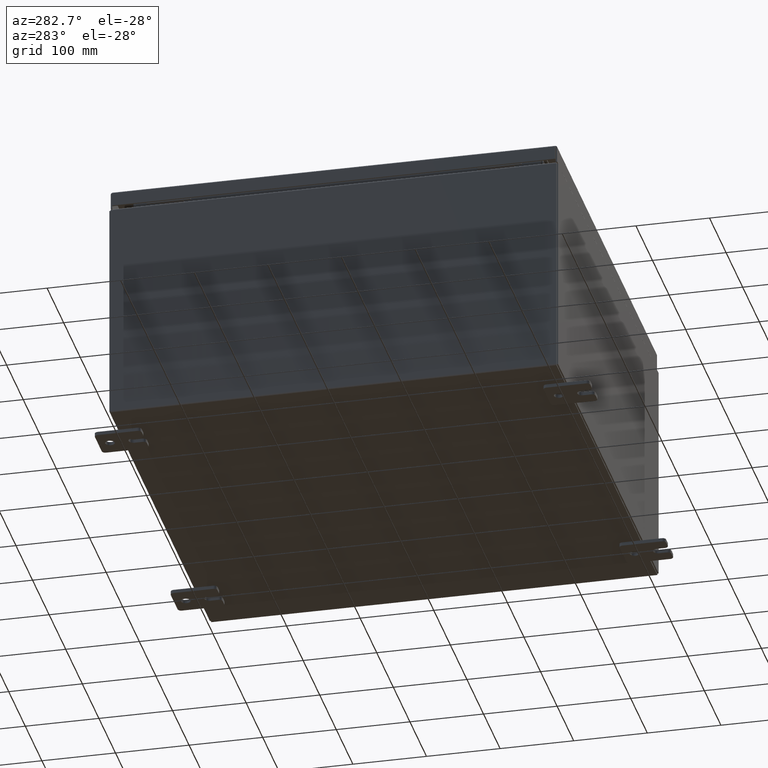
[diagram: clean part render]
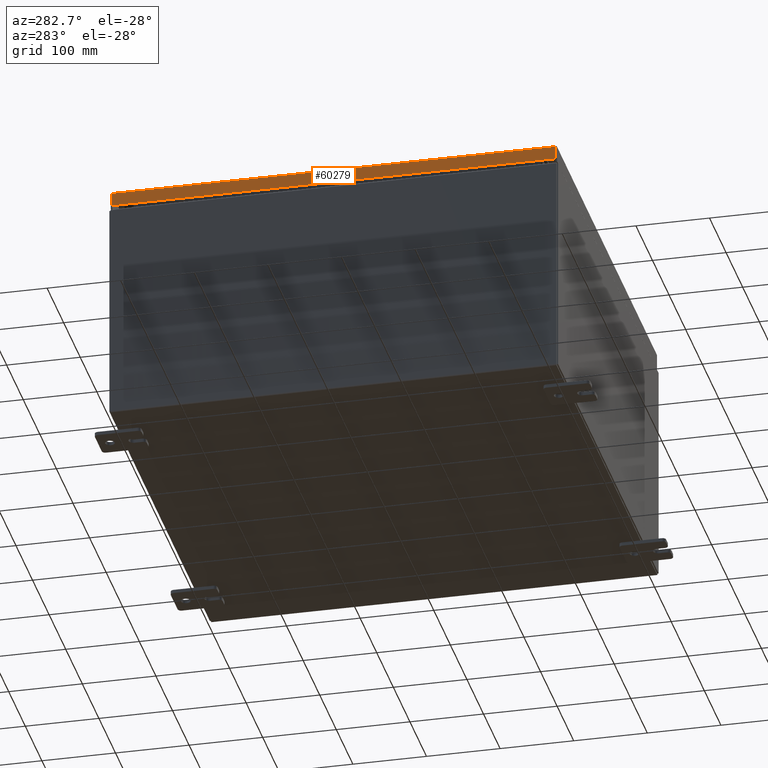
[diagram: same view with one face highlighted and labeled with its STEP entity id]
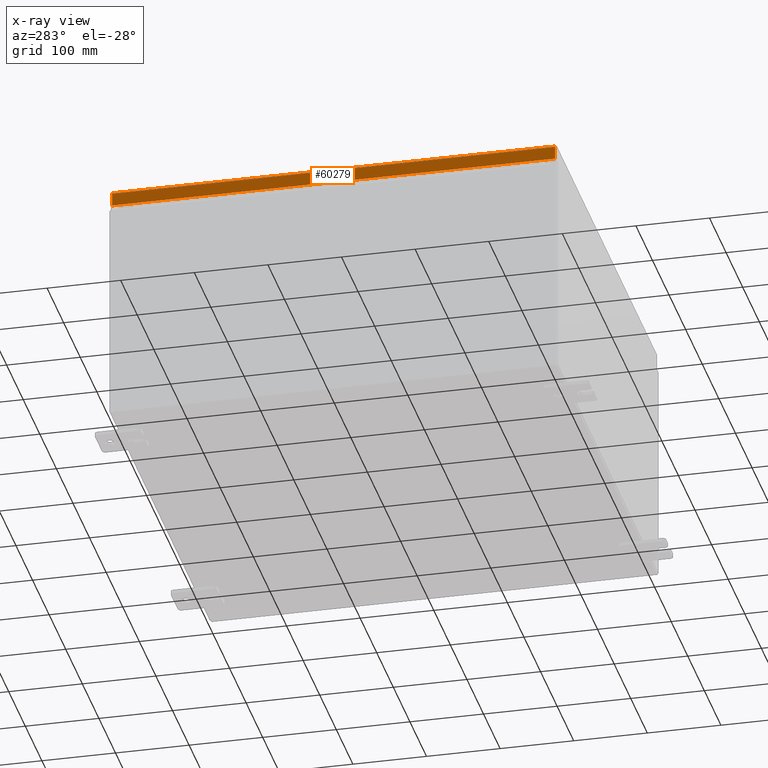
[diagram: x-ray of the same camera — body ghosted, the highlighted face saturated]
A machine part, auxiliary view. The second image highlights one B-rep face of the part: STEP entity #60279.
The next image is the same camera in x-ray: the body ghosted, the highlighted face saturated — about 0% of this face is hidden behind the body in this view.
In plain terms, the highlighted planar face has unit normal (1, 0, -0).
Its self-contained STEP definition (entity closure, byte-faithful):
#4612 = PLANE ( 'NONE',  #38758 ) ;
#6815 = CARTESIAN_POINT ( 'NONE',  ( -11.93750000000000000, 11.84865786437627300, -0.7949999999999968200 ) ) ;
#9412 = CARTESIAN_POINT ( 'NONE',  ( -11.93750000000000000, -11.84865786437626600, -0.7949999999999996000 ) ) ;
#10175 = CARTESIAN_POINT ( 'NONE',  ( -11.93749999999999800, -11.84865786437626900, -0.07469999999999976700 ) ) ;
#10381 = DIRECTION ( 'NONE',  ( -3.034122441942817300E-015, 6.982962677686265900E-015, -1.000000000000000000 ) ) ;
#11298 = LINE ( 'NONE', #55332, #37415 ) ;
#12182 = VECTOR ( 'NONE', #56494, 39.37007874015748100 ) ;
#16759 = VERTEX_POINT ( 'NONE', #26829 ) ;
#16885 = VECTOR ( 'NONE', #31903, 39.37007874015748100 ) ;
#17128 = CARTESIAN_POINT ( 'NONE',  ( -11.93749999999999800, -11.93750000000000000, -0.08770000000000004200 ) ) ;
#19397 = DIRECTION ( 'NONE',  ( 1.000000000000000000, 9.153836209136835400E-017, -3.034122441942816500E-015 ) ) ;
#21703 = EDGE_CURVE ( 'NONE', #16759, #49091, #32475, .T. ) ;
#21945 = VERTEX_POINT ( 'NONE', #6815 ) ;
#22195 = CARTESIAN_POINT ( 'NONE',  ( -11.93749999999999800, 11.84865786437626800, 1.192193859543173000E-013 ) ) ;
#23748 = LINE ( 'NONE', #22195, #12182 ) ;
#23769 = ORIENTED_EDGE ( 'NONE', *, *, #21703, .F. ) ;
#25944 = DIRECTION ( 'NONE',  ( -9.153836209136798400E-017, 1.000000000000000000, 1.201441002449204700E-016 ) ) ;
#26058 = EDGE_CURVE ( 'NONE', #30738, #16759, #42925, .T. ) ;
#26829 = CARTESIAN_POINT ( 'NONE',  ( -11.93749999999999800, -11.84865786437626800, -0.08769999999999897300 ) ) ;
#30133 = FACE_OUTER_BOUND ( 'NONE', #62769, .T. ) ;
#30738 = VERTEX_POINT ( 'NONE', #61905 ) ;
#30944 = VECTOR ( 'NONE', #10381, 39.37007874015748100 ) ;
#31903 = DIRECTION ( 'NONE',  ( 9.153836209136808200E-017, -1.000000000000000000, -9.153836209136826700E-017 ) ) ;
#32475 = LINE ( 'NONE', #10175, #30944 ) ;
#37415 = VECTOR ( 'NONE', #25944, 39.37007874015748100 ) ;
#37615 = EDGE_CURVE ( 'NONE', #49091, #21945, #11298, .T. ) ;
#38758 = AXIS2_PLACEMENT_3D ( 'NONE', #43429, #19397, #53664 ) ;
#42925 = LINE ( 'NONE', #17128, #16885 ) ;
#42986 = ORIENTED_EDGE ( 'NONE', *, *, #51743, .T. ) ;
#43429 = CARTESIAN_POINT ( 'NONE',  ( -11.93749999999999800, -1.092739197465709600E-015, 3.648065030670394700E-014 ) ) ;
#49091 = VERTEX_POINT ( 'NONE', #9412 ) ;
#51743 = EDGE_CURVE ( 'NONE', #30738, #21945, #23748, .T. ) ;
#53664 = DIRECTION ( 'NONE',  ( -3.034122441942816500E-015, 0.0000000000000000000, -1.000000000000000000 ) ) ;
#55332 = CARTESIAN_POINT ( 'NONE',  ( -11.93750000000000000, -11.93750000000000000, -0.7949999999999997100 ) ) ;
#56494 = DIRECTION ( 'NONE',  ( -3.034122441942817300E-015, 6.982962677686265900E-015, -1.000000000000000000 ) ) ;
#59905 = ORIENTED_EDGE ( 'NONE', *, *, #26058, .F. ) ;
#60279 = ADVANCED_FACE ( 'NONE', ( #30133 ), #4612, .F. ) ;
#61905 = CARTESIAN_POINT ( 'NONE',  ( -11.93750000000000000, 11.84865786437626800, -0.08769999999999786300 ) ) ;
#61982 = ORIENTED_EDGE ( 'NONE', *, *, #37615, .F. ) ;
#62769 = EDGE_LOOP ( 'NONE', ( #59905, #42986, #61982, #23769 ) ) ;